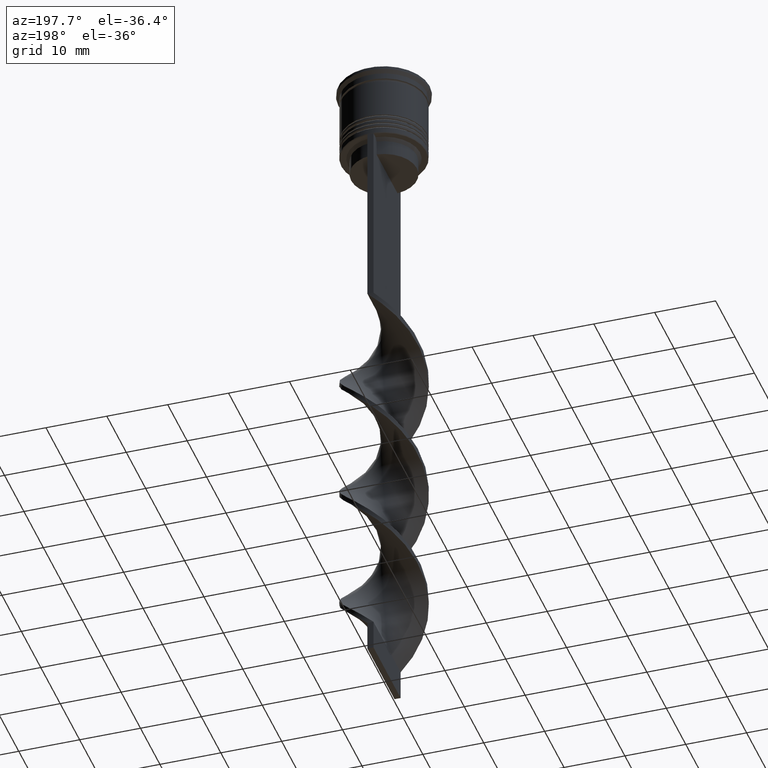
[diagram: clean part render]
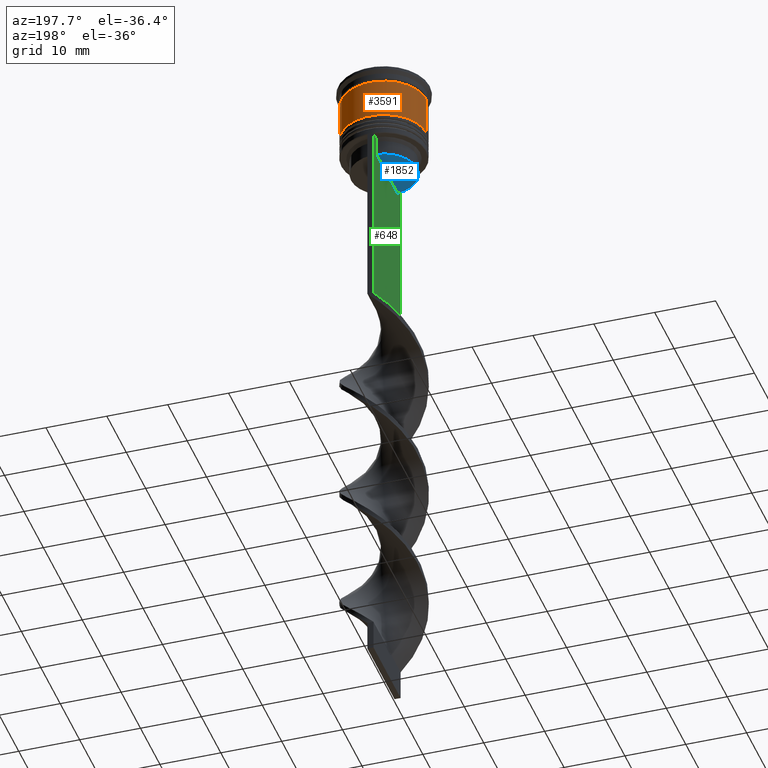
[diagram: same view with three faces highlighted in distinct colors, each labeled with its STEP entity id]
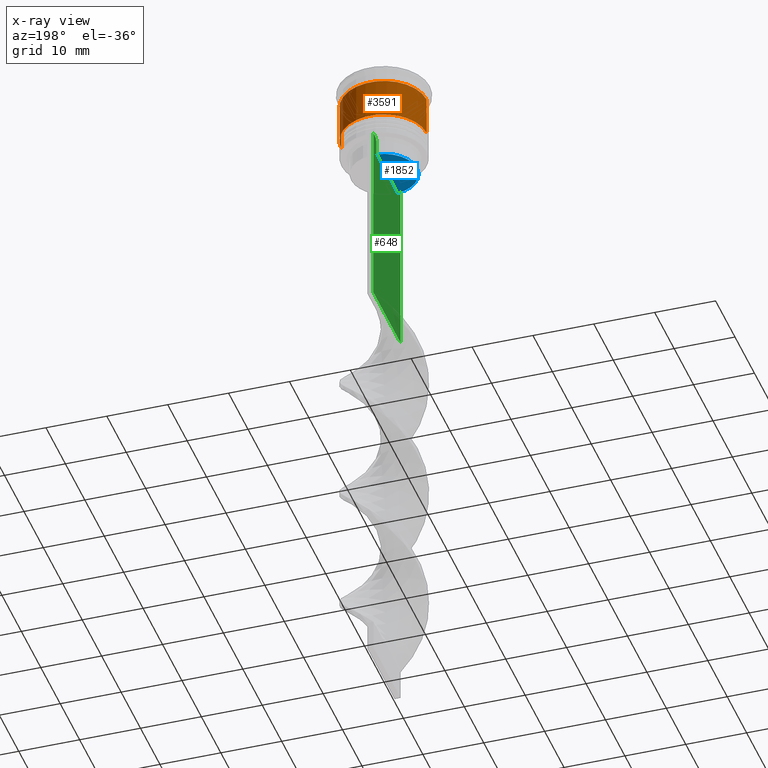
[diagram: x-ray of the same camera — body ghosted, the three highlighted faces saturated]
A machine part, auxiliary view with three faces highlighted in distinct colors.
The next image is the same camera in x-ray (body ghosted, the three faces saturated) — at least one of them is partly hidden behind the body in this view.
Their STEP definitions:

[orange] entity #3591 — the highlighted cylindrical surface (partial cylindrical patch) has radius 7 mm, axis along (-0, -0, 1).
#80 = CARTESIAN_POINT ( 'NONE',  ( -6.999999999999997335, 8.572527594031471218E-16, -2.500000000000000444 ) ) ;
#279 = CARTESIAN_POINT ( 'NONE',  ( 7.000000000000000888, 0.000000000000000000, -9.000000000000001776 ) ) ;
#294 = EDGE_CURVE ( 'NONE', #536, #2817, #3543, .T. ) ;
#348 = DIRECTION ( 'NONE',  ( -0.000000000000000000, -0.000000000000000000, 1.000000000000000000 ) ) ;
#423 = CIRCLE ( 'NONE', #2933, 6.999999999999997335 ) ;
#443 = DIRECTION ( 'NONE',  ( 1.000000000000000000, 0.000000000000000000, 0.000000000000000000 ) ) ;
#473 = CARTESIAN_POINT ( 'NONE',  ( -6.999999999999999112, 8.572527594031472204E-16, 0.000000000000000000 ) ) ;
#498 = DIRECTION ( 'NONE',  ( 1.000000000000000000, 0.000000000000000000, 0.000000000000000000 ) ) ;
#536 = VERTEX_POINT ( 'NONE', #279 ) ;
#597 = DIRECTION ( 'NONE',  ( 1.000000000000000000, 0.000000000000000000, 0.000000000000000000 ) ) ;
#665 = ORIENTED_EDGE ( 'NONE', *, *, #777, .T. ) ;
#745 = DIRECTION ( 'NONE',  ( -0.000000000000000000, -0.000000000000000000, 1.000000000000000000 ) ) ;
#777 = EDGE_CURVE ( 'NONE', #3562, #2812, #959, .T. ) ;
#831 = CARTESIAN_POINT ( 'NONE',  ( -7.000000000000000888, 8.572527594031474176E-16, -9.000000000000001776 ) ) ;
#959 = LINE ( 'NONE', #473, #2331 ) ;
#1002 = CARTESIAN_POINT ( 'NONE',  ( 0.000000000000000000, 0.000000000000000000, -9.000000000000001776 ) ) ;
#1032 = CARTESIAN_POINT ( 'NONE',  ( 6.999999999999999112, 0.000000000000000000, 0.000000000000000000 ) ) ;
#1153 = CYLINDRICAL_SURFACE ( 'NONE', #3225, 6.999999999999999112 ) ;
#1311 = DIRECTION ( 'NONE',  ( -0.000000000000000000, -0.000000000000000000, 1.000000000000000000 ) ) ;
#1512 = ORIENTED_EDGE ( 'NONE', *, *, #3033, .F. ) ;
#1624 = VECTOR ( 'NONE', #745, 1000.000000000000000 ) ;
#1763 = CARTESIAN_POINT ( 'NONE',  ( 6.999999999999997335, 0.000000000000000000, -2.500000000000000444 ) ) ;
#2082 = DIRECTION ( 'NONE',  ( -0.000000000000000000, -0.000000000000000000, 1.000000000000000000 ) ) ;
#2087 = DIRECTION ( 'NONE',  ( -0.000000000000000000, -0.000000000000000000, 1.000000000000000000 ) ) ;
#2264 = CARTESIAN_POINT ( 'NONE',  ( 0.000000000000000000, 0.000000000000000000, 0.000000000000000000 ) ) ;
#2331 = VECTOR ( 'NONE', #2082, 1000.000000000000000 ) ;
#2787 = FACE_OUTER_BOUND ( 'NONE', #3073, .T. ) ;
#2812 = VERTEX_POINT ( 'NONE', #80 ) ;
#2817 = VERTEX_POINT ( 'NONE', #1763 ) ;
#2933 = AXIS2_PLACEMENT_3D ( 'NONE', #3494, #1311, #498 ) ;
#3033 = EDGE_CURVE ( 'NONE', #2817, #2812, #423, .T. ) ;
#3073 = EDGE_LOOP ( 'NONE', ( #3551, #665, #1512, #3142 ) ) ;
#3111 = AXIS2_PLACEMENT_3D ( 'NONE', #1002, #2087, #443 ) ;
#3142 = ORIENTED_EDGE ( 'NONE', *, *, #294, .F. ) ;
#3148 = EDGE_CURVE ( 'NONE', #536, #3562, #3574, .T. ) ;
#3225 = AXIS2_PLACEMENT_3D ( 'NONE', #2264, #348, #597 ) ;
#3494 = CARTESIAN_POINT ( 'NONE',  ( 0.000000000000000000, 0.000000000000000000, -2.500000000000000444 ) ) ;
#3543 = LINE ( 'NONE', #1032, #1624 ) ;
#3551 = ORIENTED_EDGE ( 'NONE', *, *, #3148, .T. ) ;
#3562 = VERTEX_POINT ( 'NONE', #831 ) ;
#3574 = CIRCLE ( 'NONE', #3111, 7.000000000000000888 ) ;
#3591 = ADVANCED_FACE ( 'NONE', ( #2787 ), #1153, .T. ) ;

[blue] entity #1852 — the highlighted planar face has unit normal (0, -0, 1).
#4 = ORIENTED_EDGE ( 'NONE', *, *, #3080, .F. ) ;
#252 = AXIS2_PLACEMENT_3D ( 'NONE', #3545, #1888, #2451 ) ;
#332 = DIRECTION ( 'NONE',  ( 0.000000000000000000, -1.000000000000000000, 0.000000000000000000 ) ) ;
#382 = CARTESIAN_POINT ( 'NONE',  ( -0.5000000000000000000, -5.376802023508029826, -15.50000000000000000 ) ) ;
#1287 = CIRCLE ( 'NONE', #252, 5.400000000000003908 ) ;
#1539 = VERTEX_POINT ( 'NONE', #382 ) ;
#1543 = EDGE_CURVE ( 'NONE', #2775, #1539, #3177, .T. ) ;
#1767 = CARTESIAN_POINT ( 'NONE',  ( 0.000000000000000000, 5.400000000000003908, -15.50000000000000000 ) ) ;
#1852 = ADVANCED_FACE ( 'NONE', ( #2315 ), #3155, .F. ) ;
#1888 = DIRECTION ( 'NONE',  ( -0.000000000000000000, -0.000000000000000000, 1.000000000000000000 ) ) ;
#1930 = CARTESIAN_POINT ( 'NONE',  ( -0.5000000000000000000, 5.376802023508029826, -15.50000000000000000 ) ) ;
#2055 = DIRECTION ( 'NONE',  ( 0.000000000000000000, -0.000000000000000000, 1.000000000000000000 ) ) ;
#2177 = VECTOR ( 'NONE', #332, 1000.000000000000000 ) ;
#2315 = FACE_OUTER_BOUND ( 'NONE', #3561, .T. ) ;
#2451 = DIRECTION ( 'NONE',  ( 1.000000000000000000, 0.000000000000000000, 0.000000000000000000 ) ) ;
#2593 = ORIENTED_EDGE ( 'NONE', *, *, #1543, .T. ) ;
#2775 = VERTEX_POINT ( 'NONE', #1930 ) ;
#2867 = CARTESIAN_POINT ( 'NONE',  ( -0.5000000000000000000, 5.400000000000003908, -15.50000000000000000 ) ) ;
#3080 = EDGE_CURVE ( 'NONE', #2775, #1539, #1287, .T. ) ;
#3155 = PLANE ( 'NONE',  #3575 ) ;
#3177 = LINE ( 'NONE', #2867, #2177 ) ;
#3411 = DIRECTION ( 'NONE',  ( 1.000000000000000000, 0.000000000000000000, 0.000000000000000000 ) ) ;
#3545 = CARTESIAN_POINT ( 'NONE',  ( 0.000000000000000000, 0.000000000000000000, -15.50000000000000000 ) ) ;
#3561 = EDGE_LOOP ( 'NONE', ( #4, #2593 ) ) ;
#3575 = AXIS2_PLACEMENT_3D ( 'NONE', #1767, #2055, #3411 ) ;

[green] entity #648 — the highlighted planar face has unit normal (-1, 0, 0).
#13 = DIRECTION ( 'NONE',  ( 0.000000000000000000, 0.000000000000000000, -1.000000000000000000 ) ) ;
#201 = LINE ( 'NONE', #1305, #1154 ) ;
#204 = VERTEX_POINT ( 'NONE', #642 ) ;
#262 = CARTESIAN_POINT ( 'NONE',  ( -0.5000000000000000000, 5.376802023508029826, -13.00000000000000178 ) ) ;
#312 = LINE ( 'NONE', #1378, #1412 ) ;
#332 = DIRECTION ( 'NONE',  ( 0.000000000000000000, -1.000000000000000000, 0.000000000000000000 ) ) ;
#382 = CARTESIAN_POINT ( 'NONE',  ( -0.5000000000000000000, -5.376802023508029826, -15.50000000000000000 ) ) ;
#408 = CARTESIAN_POINT ( 'NONE',  ( -0.5000000000000000000, 7.000000000000002665, -12.50000000000000000 ) ) ;
#430 = VECTOR ( 'NONE', #2691, 1000.000000000000000 ) ;
#515 = CARTESIAN_POINT ( 'NONE',  ( -0.5000000000000000000, -5.878775382679629402, -12.50000000000000000 ) ) ;
#530 = VERTEX_POINT ( 'NONE', #262 ) ;
#595 = VECTOR ( 'NONE', #2800, 1000.000000000000000 ) ;
#596 = DIRECTION ( 'NONE',  ( -0.000000000000000000, -0.000000000000000000, 1.000000000000000000 ) ) ;
#612 = B_SPLINE_CURVE_WITH_KNOTS ( 'NONE', 3,
 ( #2459, #1828, #2360, #980 ),
 .UNSPECIFIED., .F., .F.,
 ( 4, 4 ),
 ( 0.01003009312103698807, 0.01073859663834952557 ),
 .UNSPECIFIED. ) ;
#616 = LINE ( 'NONE', #2245, #2240 ) ;
#624 = VERTEX_POINT ( 'NONE', #2539 ) ;
#630 = CARTESIAN_POINT ( 'NONE',  ( -0.5000000000000000000, -6.999999999999997335, 1.535668847618198329 ) ) ;
#638 = DIRECTION ( 'NONE',  ( 0.000000000000000000, -1.000000000000000000, 0.000000000000000000 ) ) ;
#642 = CARTESIAN_POINT ( 'NONE',  ( -0.5000000000000000000, -6.999999999999997335, -43.50000000000000000 ) ) ;
#648 = ADVANCED_FACE ( 'NONE', ( #1160 ), #926, .T. ) ;
#673 = DIRECTION ( 'NONE',  ( 0.000000000000000000, 0.000000000000000000, 1.000000000000000000 ) ) ;
#730 = EDGE_CURVE ( 'NONE', #2850, #3521, #3434, .T. ) ;
#752 = LINE ( 'NONE', #1672, #595 ) ;
#884 = EDGE_CURVE ( 'NONE', #2019, #3329, #201, .T. ) ;
#926 = PLANE ( 'NONE',  #1510 ) ;
#956 = CARTESIAN_POINT ( 'NONE',  ( -0.5000000000000000000, 5.376802023508029826, 0.000000000000000000 ) ) ;
#968 = CARTESIAN_POINT ( 'NONE',  ( -0.5000000000000000000, -5.376802023508029826, -13.00000000000000178 ) ) ;
#980 = CARTESIAN_POINT ( 'NONE',  ( -0.5000000000000000000, 5.376802023508029826, -13.00000000000000178 ) ) ;
#994 = EDGE_CURVE ( 'NONE', #530, #2775, #1300, .T. ) ;
#997 = B_SPLINE_CURVE_WITH_KNOTS ( 'NONE', 3,
 ( #2571, #2339, #2906, #1795 ),
 .UNSPECIFIED., .F., .F.,
 ( 4, 4 ),
 ( 0.02539176325380714666, 0.02610162431828674801 ),
 .UNSPECIFIED. ) ;
#1056 = CARTESIAN_POINT ( 'NONE',  ( -0.5000000000000000000, -6.999999999999997335, -43.50000000000000000 ) ) ;
#1097 = LINE ( 'NONE', #1377, #2821 ) ;
#1141 = CARTESIAN_POINT ( 'NONE',  ( -0.5000000000000000000, -6.999999999999997335, 1.535668847618198329 ) ) ;
#1154 = VECTOR ( 'NONE', #3540, 1000.000000000000000 ) ;
#1160 = FACE_OUTER_BOUND ( 'NONE', #1430, .T. ) ;
#1260 = CARTESIAN_POINT ( 'NONE',  ( -0.5000000000000000000, 7.000000000000002665, -43.50000000000000000 ) ) ;
#1300 = LINE ( 'NONE', #956, #2970 ) ;
#1304 = EDGE_CURVE ( 'NONE', #624, #204, #3082, .T. ) ;
#1305 = CARTESIAN_POINT ( 'NONE',  ( -0.5000000000000000000, -6.999999999999997335, -12.50000000000000000 ) ) ;
#1308 = EDGE_CURVE ( 'NONE', #3521, #3097, #616, .T. ) ;
#1335 = ORIENTED_EDGE ( 'NONE', *, *, #994, .F. ) ;
#1377 = CARTESIAN_POINT ( 'NONE',  ( -0.5000000000000000000, -5.376802023508029826, 0.000000000000000000 ) ) ;
#1378 = CARTESIAN_POINT ( 'NONE',  ( -0.5000000000000000000, 7.000000000000002665, 1.535668847618198329 ) ) ;
#1384 = EDGE_CURVE ( 'NONE', #2356, #2019, #997, .T. ) ;
#1412 = VECTOR ( 'NONE', #2025, 1000.000000000000000 ) ;
#1430 = EDGE_LOOP ( 'NONE', ( #2364, #2975, #3285, #2683, #2801, #1902, #3297, #2045, #3081, #2144, #2932, #1335 ) ) ;
#1510 = AXIS2_PLACEMENT_3D ( 'NONE', #1141, #2851, #673 ) ;
#1539 = VERTEX_POINT ( 'NONE', #382 ) ;
#1543 = EDGE_CURVE ( 'NONE', #2775, #1539, #3177, .T. ) ;
#1579 = LINE ( 'NONE', #1056, #430 ) ;
#1589 = VECTOR ( 'NONE', #13, 1000.000000000000000 ) ;
#1628 = VECTOR ( 'NONE', #638, 1000.000000000000000 ) ;
#1672 = CARTESIAN_POINT ( 'NONE',  ( -0.5000000000000000000, -6.999999999999997335, -12.50000000000000000 ) ) ;
#1721 = CARTESIAN_POINT ( 'NONE',  ( -0.5000000000000000000, 6.881860213634102053, -12.50000000000000000 ) ) ;
#1734 = DIRECTION ( 'NONE',  ( 0.000000000000000000, -1.000000000000000000, 0.000000000000000000 ) ) ;
#1742 = CARTESIAN_POINT ( 'NONE',  ( -0.5000000000000000000, -6.881860213634102053, -12.50000000000000000 ) ) ;
#1795 = CARTESIAN_POINT ( 'NONE',  ( -0.5000000000000000000, -5.878775382679629402, -12.50000000000000000 ) ) ;
#1828 = CARTESIAN_POINT ( 'NONE',  ( -0.5000000000000000000, 5.711478846560141598, -12.66669470477064685 ) ) ;
#1902 = ORIENTED_EDGE ( 'NONE', *, *, #1304, .F. ) ;
#1930 = CARTESIAN_POINT ( 'NONE',  ( -0.5000000000000000000, 5.376802023508029826, -15.50000000000000000 ) ) ;
#2019 = VERTEX_POINT ( 'NONE', #515 ) ;
#2025 = DIRECTION ( 'NONE',  ( 0.000000000000000000, 0.000000000000000000, -1.000000000000000000 ) ) ;
#2045 = ORIENTED_EDGE ( 'NONE', *, *, #884, .F. ) ;
#2144 = ORIENTED_EDGE ( 'NONE', *, *, #2233, .F. ) ;
#2177 = VECTOR ( 'NONE', #332, 1000.000000000000000 ) ;
#2233 = EDGE_CURVE ( 'NONE', #1539, #2356, #1097, .T. ) ;
#2240 = VECTOR ( 'NONE', #1734, 1000.000000000000000 ) ;
#2245 = CARTESIAN_POINT ( 'NONE',  ( -0.5000000000000000000, -6.999999999999997335, -12.50000000000000000 ) ) ;
#2339 = CARTESIAN_POINT ( 'NONE',  ( -0.5000000000000000000, -5.544156999454441959, -12.83336396790503642 ) ) ;
#2356 = VERTEX_POINT ( 'NONE', #968 ) ;
#2360 = CARTESIAN_POINT ( 'NONE',  ( -0.5000000000000000000, 5.544156989057553275, -12.83336397825725861 ) ) ;
#2364 = ORIENTED_EDGE ( 'NONE', *, *, #3397, .F. ) ;
#2459 = CARTESIAN_POINT ( 'NONE',  ( -0.5000000000000000000, 5.878775382679629402, -12.50000000000000000 ) ) ;
#2506 = VERTEX_POINT ( 'NONE', #1260 ) ;
#2539 = CARTESIAN_POINT ( 'NONE',  ( -0.5000000000000000000, -6.999999999999997335, -12.50000000000000000 ) ) ;
#2553 = CARTESIAN_POINT ( 'NONE',  ( -0.5000000000000000000, -6.999999999999997335, -12.50000000000000000 ) ) ;
#2571 = CARTESIAN_POINT ( 'NONE',  ( -0.5000000000000000000, -5.376802023508029826, -13.00000000000000178 ) ) ;
#2585 = EDGE_CURVE ( 'NONE', #204, #2506, #1579, .T. ) ;
#2606 = EDGE_CURVE ( 'NONE', #3329, #624, #752, .T. ) ;
#2683 = ORIENTED_EDGE ( 'NONE', *, *, #3523, .T. ) ;
#2691 = DIRECTION ( 'NONE',  ( 0.000000000000000000, 1.000000000000000000, 0.000000000000000000 ) ) ;
#2775 = VERTEX_POINT ( 'NONE', #1930 ) ;
#2800 = DIRECTION ( 'NONE',  ( 0.000000000000000000, -1.000000000000000000, 0.000000000000000000 ) ) ;
#2801 = ORIENTED_EDGE ( 'NONE', *, *, #2585, .F. ) ;
#2821 = VECTOR ( 'NONE', #596, 1000.000000000000000 ) ;
#2850 = VERTEX_POINT ( 'NONE', #408 ) ;
#2851 = DIRECTION ( 'NONE',  ( -1.000000000000000000, 0.000000000000000000, 0.000000000000000000 ) ) ;
#2867 = CARTESIAN_POINT ( 'NONE',  ( -0.5000000000000000000, 5.400000000000003908, -15.50000000000000000 ) ) ;
#2906 = CARTESIAN_POINT ( 'NONE',  ( -0.5000000000000000000, -5.711478856069293286, -12.66669469529570335 ) ) ;
#2932 = ORIENTED_EDGE ( 'NONE', *, *, #1543, .F. ) ;
#2962 = CARTESIAN_POINT ( 'NONE',  ( -0.5000000000000000000, 5.878775382679629402, -12.50000000000000000 ) ) ;
#2970 = VECTOR ( 'NONE', #3535, 1000.000000000000000 ) ;
#2975 = ORIENTED_EDGE ( 'NONE', *, *, #1308, .F. ) ;
#3081 = ORIENTED_EDGE ( 'NONE', *, *, #1384, .F. ) ;
#3082 = LINE ( 'NONE', #630, #1589 ) ;
#3097 = VERTEX_POINT ( 'NONE', #2962 ) ;
#3177 = LINE ( 'NONE', #2867, #2177 ) ;
#3285 = ORIENTED_EDGE ( 'NONE', *, *, #730, .F. ) ;
#3297 = ORIENTED_EDGE ( 'NONE', *, *, #2606, .F. ) ;
#3329 = VERTEX_POINT ( 'NONE', #1742 ) ;
#3397 = EDGE_CURVE ( 'NONE', #3097, #530, #612, .T. ) ;
#3434 = LINE ( 'NONE', #2553, #1628 ) ;
#3521 = VERTEX_POINT ( 'NONE', #1721 ) ;
#3523 = EDGE_CURVE ( 'NONE', #2850, #2506, #312, .T. ) ;
#3535 = DIRECTION ( 'NONE',  ( 0.000000000000000000, 0.000000000000000000, -1.000000000000000000 ) ) ;
#3540 = DIRECTION ( 'NONE',  ( 0.000000000000000000, -1.000000000000000000, 0.000000000000000000 ) ) ;